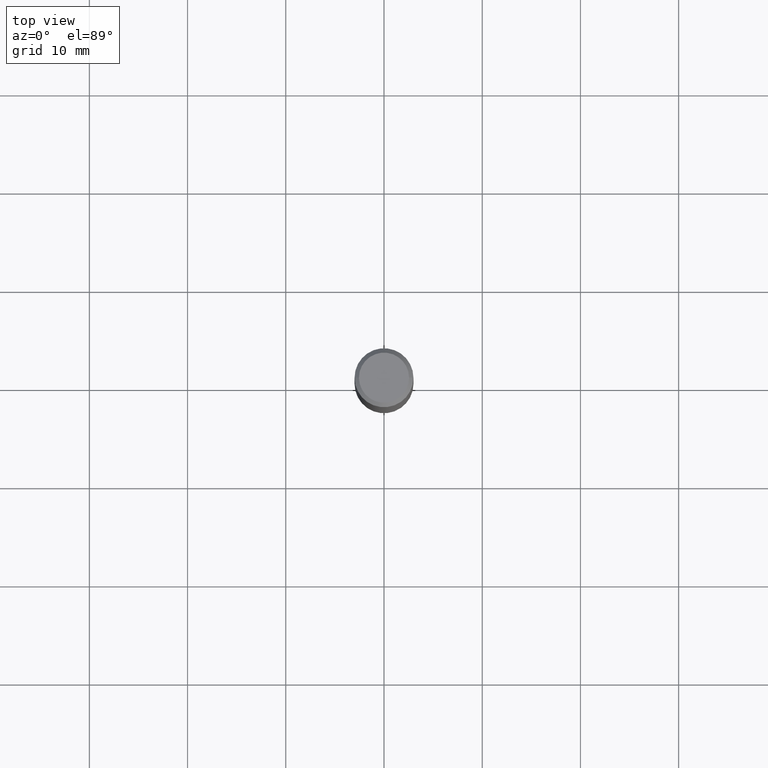
[diagram: clean part render]
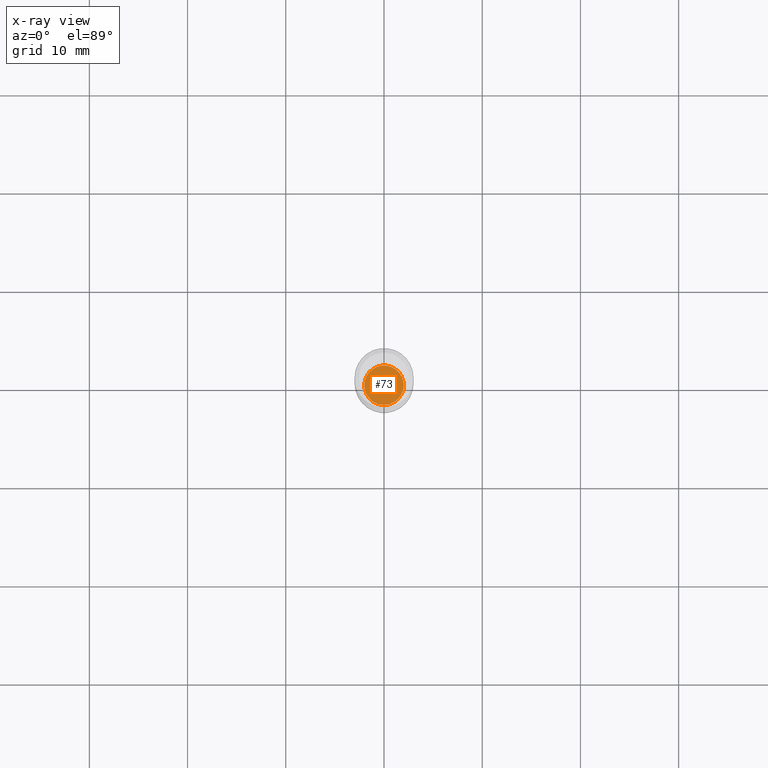
[diagram: x-ray — body ghosted, one internal face saturated and labeled with its STEP entity id]
A machine part, top view, then the same camera in x-ray: the body is ghosted and one INTERNAL B-rep face — a face not visible from any outside direction — is saturated and labeled: STEP entity #73.
In plain terms, the highlighted planar face has unit normal (-0, 0, 1).
Its self-contained STEP definition (entity closure, byte-faithful):
#13 = FACE_OUTER_BOUND ( 'NONE', #17, .T. ) ;
#16 = DIRECTION ( 'NONE',  ( 1.000000000000000000, -6.982962677686265922E-15, 4.876176775795935793E-29 ) ) ;
#17 = EDGE_LOOP ( 'NONE', ( #259, #237 ) ) ;
#22 = CARTESIAN_POINT ( 'NONE',  ( 4.331658896395732410E-29, -6.184460895492863090E-15, -1.771299999999999653 ) ) ;
#31 = CARTESIAN_POINT ( 'NONE',  ( -0.07900000000000000078, -5.620482907068273032E-15, -1.771299999999999653 ) ) ;
#44 = DIRECTION ( 'NONE',  ( 1.000000000000000000, -6.982962677686271444E-15, 0.000000000000000000 ) ) ;
#73 = ADVANCED_FACE ( 'NONE', ( #13 ), #217, .F. ) ;
#142 = CARTESIAN_POINT ( 'NONE',  ( 0.07900000000000000078, -6.736114947030078728E-15, -1.771299999999999653 ) ) ;
#183 = DIRECTION ( 'NONE',  ( -2.438088387897960049E-29, 3.491481338843145188E-15, 1.000000000000000000 ) ) ;
#217 = PLANE ( 'NONE',  #484 ) ;
#228 = DIRECTION ( 'NONE',  ( 1.000000000000000000, -6.982962677686271444E-15, 0.000000000000000000 ) ) ;
#237 = ORIENTED_EDGE ( 'NONE', *, *, #457, .F. ) ;
#244 = DIRECTION ( 'NONE',  ( -2.445468806185136597E-29, 3.491481338843145583E-15, 1.000000000000000000 ) ) ;
#259 = ORIENTED_EDGE ( 'NONE', *, *, #353, .F. ) ;
#282 = VERTEX_POINT ( 'NONE', #31 ) ;
#353 = EDGE_CURVE ( 'NONE', #389, #282, #357, .T. ) ;
#357 = CIRCLE ( 'NONE', #452, 0.07900000000000000078 ) ;
#389 = VERTEX_POINT ( 'NONE', #142 ) ;
#417 = AXIS2_PLACEMENT_3D ( 'NONE', #422, #244, #44 ) ;
#422 = CARTESIAN_POINT ( 'NONE',  ( 4.331658896395732410E-29, -6.184460895492863090E-15, -1.771299999999999653 ) ) ;
#449 = CARTESIAN_POINT ( 'NONE',  ( 4.331658896395732410E-29, -6.184460895492863090E-15, -1.771299999999999653 ) ) ;
#452 = AXIS2_PLACEMENT_3D ( 'NONE', #449, #475, #228 ) ;
#457 = EDGE_CURVE ( 'NONE', #282, #389, #474, .T. ) ;
#474 = CIRCLE ( 'NONE', #417, 0.07900000000000000078 ) ;
#475 = DIRECTION ( 'NONE',  ( -2.445468806185136597E-29, 3.491481338843145583E-15, 1.000000000000000000 ) ) ;
#484 = AXIS2_PLACEMENT_3D ( 'NONE', #22, #183, #16 ) ;